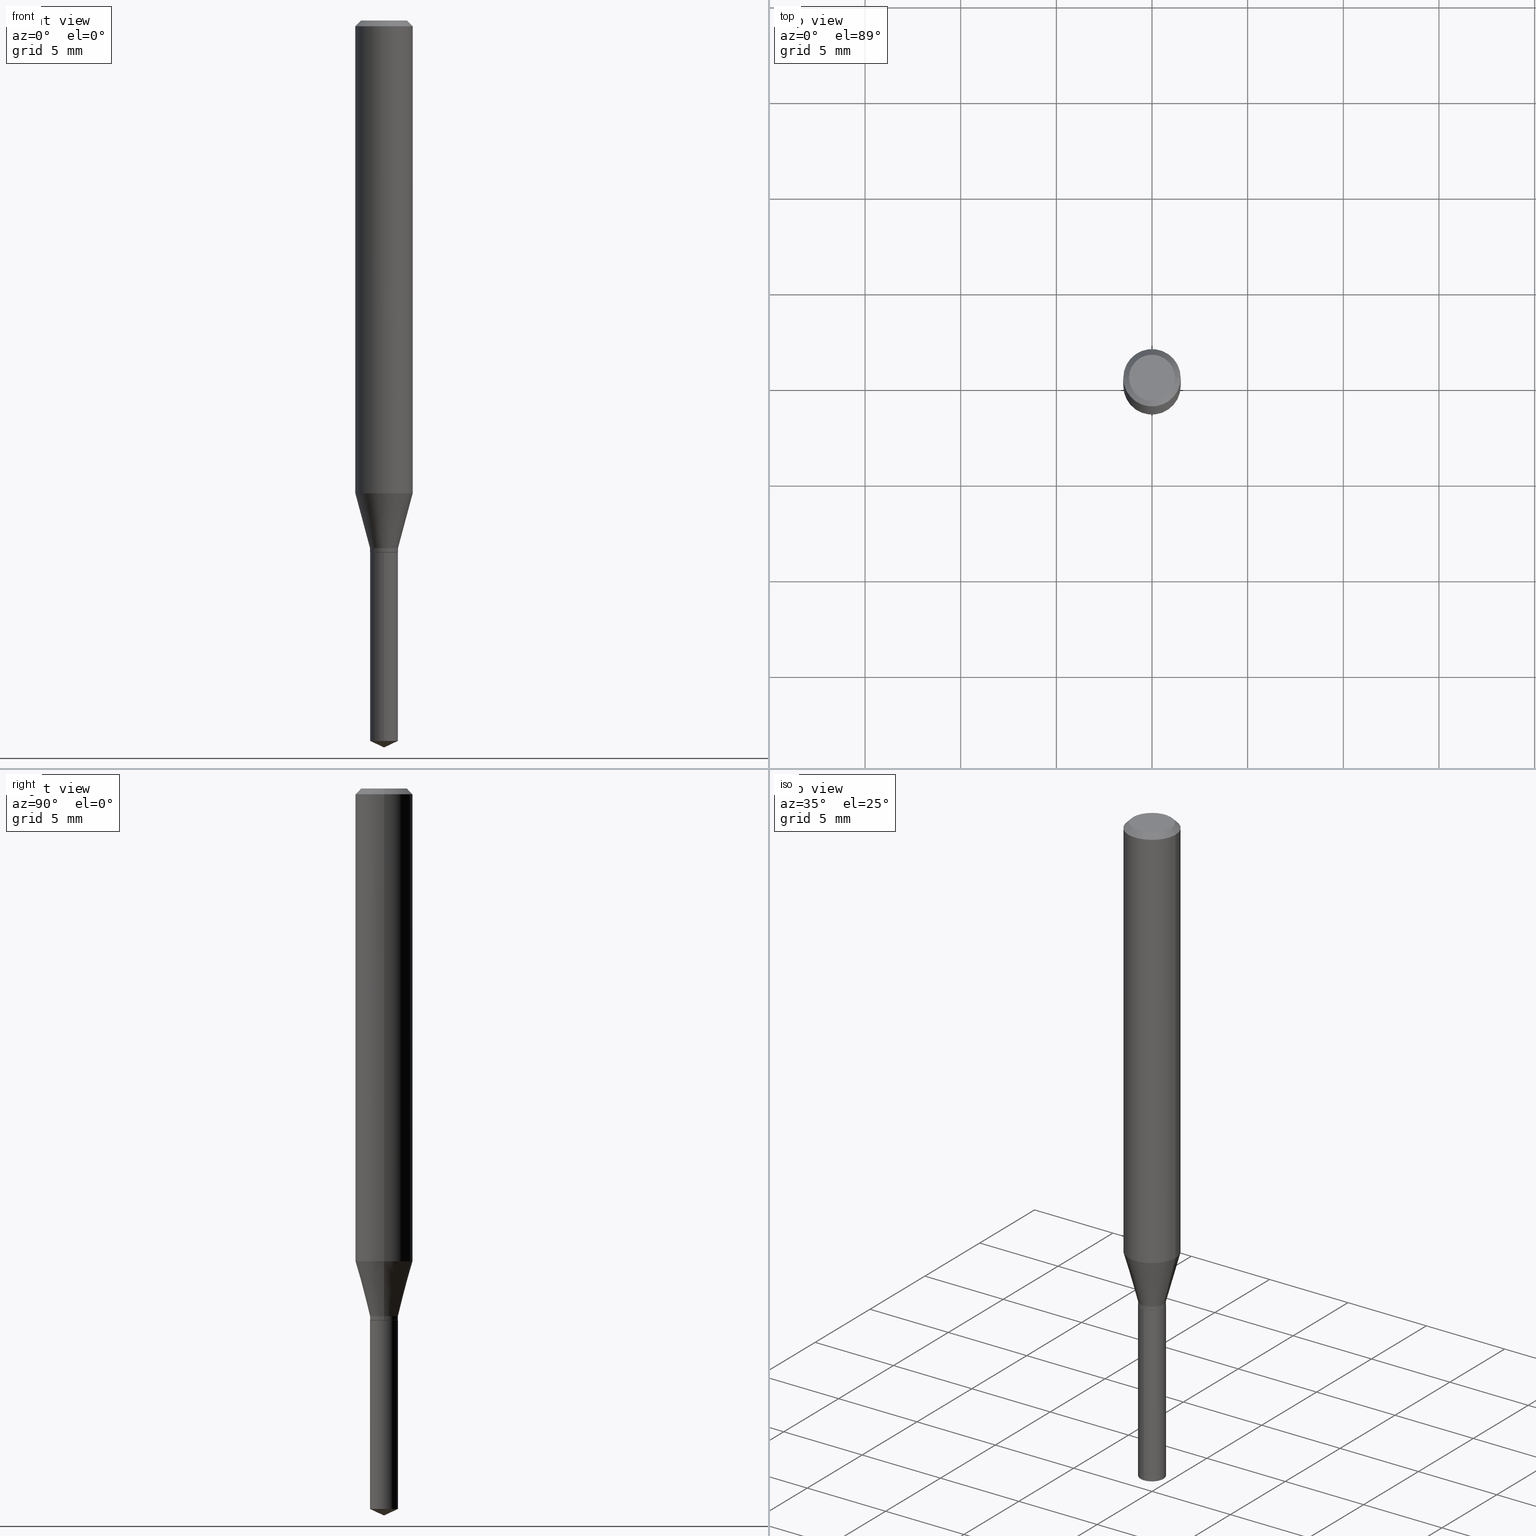
[diagram: canonical four-view strip — front | top / right | iso, engineering-drawing reading convention]
A machine part, canonical four-view strip (front | top / right | iso — engineering-drawing reading convention). The complete STEP part file that produces these views, byte-faithful:
ISO-10303-21;
HEADER;
FILE_DESCRIPTION (( 'STEP AP203' ),
    '1' );
FILE_NAME ('07880.STEP',
    '2024-04-24T05:12:21',
    ( '' ),
    ( '' ),
    'SwSTEP 2.0',
    'SolidWorks 2023',
    '' );
FILE_SCHEMA (( 'CONFIG_CONTROL_DESIGN' ));
ENDSEC;

DATA;
#1 = DIRECTION ( 'NONE',  ( -2.445468806185136597E-29, 3.491481338843145583E-15, 1.000000000000000000 ) ) ;
#2 = ORIENTED_EDGE ( 'NONE', *, *, #81, .T. ) ;
#3 = CARTESIAN_POINT ( 'NONE',  ( -1.018852388048392577E-29, -9.113475226364771968E-15, -1.094500000000000028 ) ) ;
#4 = ORIENTED_EDGE ( 'NONE', *, *, #352, .T. ) ;
#5 = ORIENTED_EDGE ( 'NONE', *, *, #457, .F. ) ;
#6 = AXIS2_PLACEMENT_3D ( 'NONE', #272, #276, #199 ) ;
#7 = ORIENTED_EDGE ( 'NONE', *, *, #175, .F. ) ;
#8 = ORIENTED_EDGE ( 'NONE', *, *, #484, .F. ) ;
#9 = CARTESIAN_POINT ( 'NONE',  ( 2.676565608369632355E-29, -3.821426325363822773E-15, -1.094500000000000028 ) ) ;
#10 = ORIENTED_EDGE ( 'NONE', *, *, #142, .F. ) ;
#11 = CONICAL_SURFACE ( 'NONE', #188, 0.02874999999999998737, 0.2617993877991498519 ) ;
#12 = AXIS2_PLACEMENT_3D ( 'NONE', #398, #436, #483 ) ;
#13 = EDGE_LOOP ( 'NONE', ( #7, #144, #410, #309 ) ) ;
#14 = PRODUCT ( '07880', '07880', '', ( #138 ) ) ;
#15 = ORIENTED_EDGE ( 'NONE', *, *, #134, .T. ) ;
#16 = PLANE ( 'NONE',  #6 ) ;
#17 = CARTESIAN_POINT ( 'NONE',  ( 0.000000000000000000, 0.000000000000000000, 0.000000000000000000 ) ) ;
#18 = AXIS2_PLACEMENT_3D ( 'NONE', #159, #151, #58 ) ;
#19 = VECTOR ( 'NONE', #128, 39.37007874015748854 ) ;
#20 = DIRECTION ( 'NONE',  ( -2.445468806185136597E-29, 3.491481338843145583E-15, 1.000000000000000000 ) ) ;
#21 = CC_DESIGN_APPROVAL ( #329, ( #104 ) ) ;
#22 = ORIENTED_EDGE ( 'NONE', *, *, #129, .F. ) ;
#23 = DATE_AND_TIME ( #63, #489 ) ;
#24 = DIRECTION ( 'NONE',  ( -0.2588190451025211281, 5.211531920934547886E-15, 0.9659258262890679791 ) ) ;
#25 = CALENDAR_DATE ( 2024, 24, 4 ) ;
#26 = CARTESIAN_POINT ( 'NONE',  ( 0.02874999999999998737, -2.007601769834801088E-16, 1.401900823041331120E-30 ) ) ;
#27 = DIRECTION ( 'NONE',  ( -2.445468806185136597E-29, 3.491481338843145583E-15, 1.000000000000000000 ) ) ;
#28 = CLOSED_SHELL ( 'NONE', ( #156, #148, #467, #112, #34, #202, #211, #49, #448, #119, #399, #243 ) ) ;
#29 = CONICAL_SURFACE ( 'NONE', #79, 0.02874999999999998737, 0.2617993877991498519 ) ;
#30 = LENGTH_MEASURE_WITH_UNIT ( LENGTH_MEASURE( 0.02539999999999999897 ), #193 );
#31 = DIRECTION ( 'NONE',  ( -2.445470214571802396E-29, 3.491479321953280158E-15, 1.000000000000000000 ) ) ;
#32 = FACE_OUTER_BOUND ( 'NONE', #257, .T. ) ;
#33 = ORIENTED_EDGE ( 'NONE', *, *, #265, .F. ) ;
#34 = ADVANCED_FACE ( 'NONE', ( #318 ), #123, .T. ) ;
#35 = CARTESIAN_POINT ( 'NONE',  ( -9.261968845786000133E-28, 1.322362114038720264E-13, 37.87397874015748300 ) ) ;
#36 = DATE_AND_TIME ( #217, #271 ) ;
#37 = ORIENTED_EDGE ( 'NONE', *, *, #414, .F. ) ;
#38 = AXIS2_PLACEMENT_3D ( 'NONE', #17, #155, #345 ) ;
#39 = AXIS2_PLACEMENT_3D ( 'NONE', #3, #117, #267 ) ;
#40 = APPROVAL_PERSON_ORGANIZATION ( #478, #55, #206 ) ;
#41 = DIRECTION ( 'NONE',  ( 1.000000000000000000, -6.982962677686266711E-15, 4.876185090822587894E-29 ) ) ;
#42 = EDGE_LOOP ( 'NONE', ( #181, #194, #37, #22 ) ) ;
#43 = PRODUCT_RELATED_PRODUCT_CATEGORY ( 'detail', '', ( #14 ) ) ;
#44 = ORIENTED_EDGE ( 'NONE', *, *, #219, .F. ) ;
#45 = ADVANCED_FACE ( 'NONE', ( #316 ), #196, .T. ) ;
#46 = VERTEX_POINT ( 'NONE', #420 ) ;
#47 = CARTESIAN_POINT ( 'NONE',  ( 2.042810365310650506E-16, 0.02874999999999482136, -1.482693654828043606 ) ) ;
#48 = VERTEX_POINT ( 'NONE', #394 ) ;
#49 = ADVANCED_FACE ( 'NONE', ( #430 ), #94, .T. ) ;
#50 = CARTESIAN_POINT ( 'NONE',  ( 2.655534576636439869E-29, -3.791399585849771334E-15, -1.085899999999999865 ) ) ;
#51 = CARTESIAN_POINT ( 'NONE',  ( 3.625881628737379550E-29, -5.176796444109405893E-15, -1.482693654828043606 ) ) ;
#52 = CC_DESIGN_APPROVAL ( #480, ( #348 ) ) ;
#53 = VERTEX_POINT ( 'NONE', #350 ) ;
#54 = CARTESIAN_POINT ( 'NONE',  ( 0.02874999999999998737, -3.992159762833251344E-15, -1.085899999999999865 ) ) ;
#55 = APPROVAL ( #168, 'UNSPECIFIED' ) ;
#56 = ADVANCED_FACE ( 'NONE', ( #314 ), #231, .T. ) ;
#57 = APPROVAL_DATE_TIME ( #393, #480 ) ;
#58 = DIRECTION ( 'NONE',  ( 1.000000000000000000, -6.982962677686266711E-15, 4.876176775795935793E-29 ) ) ;
#59 = CARTESIAN_POINT ( 'NONE',  ( 2.676565608369631794E-29, -3.821426325363822773E-15, -1.094499999999999806 ) ) ;
#60 = CARTESIAN_POINT ( 'NONE',  ( 0.05905000000000006077, -4.123439461173744764E-16, 2.879382386107503023E-30 ) ) ;
#61 = EDGE_LOOP ( 'NONE', ( #4, #223, #215, #304 ) ) ;
#62 = CIRCLE ( 'NONE', #247, 0.02874999999999998737 ) ;
#63 = CALENDAR_DATE ( 2024, 24, 4 ) ;
#64 = CARTESIAN_POINT ( 'NONE',  ( 2.378998177496304355E-29, -3.396578897617461256E-15, -0.9728188605306625769 ) ) ;
#65 = SECURITY_CLASSIFICATION ( '', '', #363 ) ;
#66 = DIRECTION ( 'NONE',  ( -2.445468806185136597E-29, 3.491481338843145583E-15, 1.000000000000000000 ) ) ;
#67 = EDGE_CURVE ( 'NONE', #53, #106, #261, .T. ) ;
#68 = DIRECTION ( 'NONE',  ( 1.000000000000000000, -6.982962677686259611E-15, 0.000000000000000000 ) ) ;
#69 = LINE ( 'NONE', #132, #222 ) ;
#70 = AXIS2_PLACEMENT_3D ( 'NONE', #51, #311, #89 ) ;
#71 = CC_DESIGN_DATE_AND_TIME_ASSIGNMENT ( #23, #162, ( #65 ) ) ;
#72 = CARTESIAN_POINT ( 'NONE',  ( -0.02874999999999998737, -3.601259048741056725E-15, -1.093999999999999861 ) ) ;
#73 = ORIENTED_EDGE ( 'NONE', *, *, #476, .F. ) ;
#74 = CARTESIAN_POINT ( 'NONE',  ( 2.655534576636439869E-29, -3.791399585849771334E-15, -1.085899999999999865 ) ) ;
#75 = COORDINATED_UNIVERSAL_TIME_OFFSET ( 5, 0, .BEHIND. ) ;
#76 = ORIENTED_EDGE ( 'NONE', *, *, #186, .F. ) ;
#77 = DIRECTION ( 'NONE',  ( -2.445470214571802116E-29, 3.491479321953280158E-15, 1.000000000000000000 ) ) ;
#78 = ORIENTED_EDGE ( 'NONE', *, *, #294, .T. ) ;
#79 = AXIS2_PLACEMENT_3D ( 'NONE', #207, #133, #68 ) ;
#80 = VERTEX_POINT ( 'NONE', #85 ) ;
#81 = EDGE_CURVE ( 'NONE', #114, #46, #468, .T. ) ;
#82 = ORIENTED_EDGE ( 'NONE', *, *, #250, .T. ) ;
#83 = PRODUCT_DEFINITION_SHAPE ( 'NONE', 'NONE',  #104 ) ;
#84 = CALENDAR_DATE ( 2024, 24, 4 ) ;
#85 = CARTESIAN_POINT ( 'NONE',  ( -2.007601769834534108E-16, -0.02875000000000382111, -1.094499999999999806 ) ) ;
#86 = VECTOR ( 'NONE', #102, 39.37007874015748143 ) ;
#87 = CC_DESIGN_APPROVAL ( #55, ( #65 ) ) ;
#88 = VERTEX_POINT ( 'NONE', #90 ) ;
#89 = DIRECTION ( 'NONE',  ( -6.982962677686265922E-15, -1.000000000000000000, 0.000000000000000000 ) ) ;
#90 = CARTESIAN_POINT ( 'NONE',  ( -0.05905000000000011628, -2.977003412151120974E-15, -0.9728188605306625769 ) ) ;
#91 = DIRECTION ( 'NONE',  ( -6.982962677686265922E-15, -1.000000000000000000, 4.751039988981327336E-15 ) ) ;
#92 = DIRECTION ( 'NONE',  ( -6.982962677686265922E-15, -1.000000000000000000, 4.751039988981327336E-15 ) ) ;
#93 = AXIS2_PLACEMENT_3D ( 'NONE', #485, #1, #41 ) ;
#94 = CYLINDRICAL_SURFACE ( 'NONE', #18, 0.05905000000000006077 ) ;
#95 = MANIFOLD_SOLID_BREP ( 'Body-Move/Copy2[1]', #152 ) ;
#96 = DIRECTION ( 'NONE',  ( 1.000000000000000000, -6.982962677686267499E-15, 4.876176775795936353E-29 ) ) ;
#97 = LINE ( 'NONE', #60, #445 ) ;
#98 = EDGE_LOOP ( 'NONE', ( #428, #266, #418 ) ) ;
#99 = CIRCLE ( 'NONE', #70, 0.02875000000000000125 ) ;
#100 = CARTESIAN_POINT ( 'NONE',  ( -0.02874999999999998737, -3.587118549318742152E-15, -1.085899999999999865 ) ) ;
#101 = DATE_AND_TIME ( #25, #332 ) ;
#102 = DIRECTION ( 'NONE',  ( -2.445468806185136877E-29, 3.491481338843145188E-15, 1.000000000000000000 ) ) ;
#103 = FACE_OUTER_BOUND ( 'NONE', #42, .T. ) ;
#104 = PRODUCT_DEFINITION ( 'UNKNOWN', '', #348, #458 ) ;
#105 = CIRCLE ( 'NONE', #253, 0.05904999999999999832 ) ;
#106 = VERTEX_POINT ( 'NONE', #385 ) ;
#107 = CARTESIAN_POINT ( 'NONE',  ( 2.675342873966538993E-29, -3.819680584694400481E-15, -1.093999999999999861 ) ) ;
#108 = VERTEX_POINT ( 'NONE', #125 ) ;
#109 = DIRECTION ( 'NONE',  ( 1.000000000000000000, -6.982962677686259611E-15, 0.000000000000000000 ) ) ;
#110 = ORIENTED_EDGE ( 'NONE', *, *, #236, .F. ) ;
#111 = VERTEX_POINT ( 'NONE', #47 ) ;
#112 = ADVANCED_FACE ( 'NONE', ( #384 ), #11, .T. ) ;
#113 = PERSON_AND_ORGANIZATION ( #380, #153 ) ;
#114 = VERTEX_POINT ( 'NONE', #149 ) ;
#115 = APPROVAL_ROLE ( '' ) ;
#116 = EDGE_LOOP ( 'NONE', ( #246, #15, #147, #33 ) ) ;
#117 = DIRECTION ( 'NONE',  ( -2.438088387897960049E-29, 3.491481338843145188E-15, 1.000000000000000000 ) ) ;
#118 = UNCERTAINTY_MEASURE_WITH_UNIT (LENGTH_MEASURE( 1.000000000000000082E-05 ), #327, 'distance_accuracy_value', 'NONE');
#119 = ADVANCED_FACE ( 'NONE', ( #310 ), #277, .F. ) ;
#120 = CARTESIAN_POINT ( 'NONE',  ( 2.676565608369631794E-29, -3.821426325363822773E-15, -1.094499999999999806 ) ) ;
#121 = AXIS2_PLACEMENT_3D ( 'NONE', #287, #66, #96 ) ;
#122 =( GEOMETRIC_REPRESENTATION_CONTEXT ( 3 ) GLOBAL_UNCERTAINTY_ASSIGNED_CONTEXT ( ( #118 ) ) GLOBAL_UNIT_ASSIGNED_CONTEXT ( ( #327, #173, #442 ) ) REPRESENTATION_CONTEXT ( 'NONE', 'WORKASPACE' ) );
#123 = CYLINDRICAL_SURFACE ( 'NONE', #38, 0.02874999999999998737 ) ;
#124 = CC_DESIGN_PERSON_AND_ORGANIZATION_ASSIGNMENT ( #397, #197, ( #65 ) ) ;
#125 = CARTESIAN_POINT ( 'NONE',  ( 0.02874999999999998737, -3.992159762833251344E-15, -1.085899999999999865 ) ) ;
#126 = ORIENTED_EDGE ( 'NONE', *, *, #142, .T. ) ;
#127 = LINE ( 'NONE', #285, #437 ) ;
#128 = DIRECTION ( 'NONE',  ( -6.328713451373352024E-15, -0.9063077870366461619, 0.4226182617407073239 ) ) ;
#129 = EDGE_CURVE ( 'NONE', #53, #407, #127, .T. ) ;
#130 = CARTESIAN_POINT ( 'NONE',  ( 3.658664905062460986E-29, -5.223606628546217219E-15, -1.496099999999999985 ) ) ;
#131 = VECTOR ( 'NONE', #362, 39.37007874015748854 ) ;
#132 = CARTESIAN_POINT ( 'NONE',  ( 2.042810365310555350E-16, 0.02874999999999618139, -1.094500000000000028 ) ) ;
#133 = DIRECTION ( 'NONE',  ( -2.445468806185136597E-29, 3.491481338843145583E-15, 1.000000000000000000 ) ) ;
#134 = EDGE_CURVE ( 'NONE', #88, #177, #291, .T. ) ;
#135 = DIRECTION ( 'NONE',  ( -2.445468806185136597E-29, 3.491481338843145583E-15, 1.000000000000000000 ) ) ;
#136 = AXIS2_PLACEMENT_3D ( 'NONE', #198, #275, #353 ) ;
#137 = FACE_OUTER_BOUND ( 'NONE', #377, .T. ) ;
#138 = MECHANICAL_CONTEXT ( 'NONE', #273, 'mechanical' ) ;
#139 = ORIENTED_EDGE ( 'NONE', *, *, #476, .T. ) ;
#140 = DIRECTION ( 'NONE',  ( -2.445468806185136597E-29, 3.491481338843145583E-15, 1.000000000000000000 ) ) ;
#141 = ORIENTED_EDGE ( 'NONE', *, *, #255, .T. ) ;
#142 = EDGE_CURVE ( 'NONE', #407, #108, #244, .T. ) ;
#143 = CARTESIAN_POINT ( 'NONE',  ( 2.888098660104664642E-31, -4.123439461173780879E-17, -0.01181000000000007565 ) ) ;
#144 = ORIENTED_EDGE ( 'NONE', *, *, #219, .T. ) ;
#145 = VERTEX_POINT ( 'NONE', #169 ) ;
#146 = CIRCLE ( 'NONE', #306, 0.02875000000000000125 ) ;
#147 = ORIENTED_EDGE ( 'NONE', *, *, #225, .T. ) ;
#148 = ADVANCED_FACE ( 'NONE', ( #367 ), #453, .T. ) ;
#149 = CARTESIAN_POINT ( 'NONE',  ( 0.04724000000000000421, -3.852183633974369345E-16, -3.380025165621689721E-19 ) ) ;
#150 = DIRECTION ( 'NONE',  ( 0.2588190451025211281, 1.565188264969622954E-15, 0.9659258262890679791 ) ) ;
#151 = DIRECTION ( 'NONE',  ( -2.445468806185136597E-29, 3.491481338843145583E-15, 1.000000000000000000 ) ) ;
#152 = CLOSED_SHELL ( 'NONE', ( #56, #361, #299, #45, #443 ) ) ;
#153 = ORGANIZATION ( 'UNSPECIFIED', 'UNSPECIFIED', '' ) ;
#154 = APPROVAL_STATUS ( 'not_yet_approved' ) ;
#155 = DIRECTION ( 'NONE',  ( -2.445468806185136597E-29, 3.491481338843145583E-15, 1.000000000000000000 ) ) ;
#156 = ADVANCED_FACE ( 'NONE', ( #103 ), #388, .T. ) ;
#157 = ORIENTED_EDGE ( 'NONE', *, *, #312, .F. ) ;
#158 = CARTESIAN_POINT ( 'NONE',  ( 2.888098660104664642E-31, -4.123439461173780879E-17, -0.01181000000000007565 ) ) ;
#159 = CARTESIAN_POINT ( 'NONE',  ( 0.000000000000000000, 0.000000000000000000, 0.000000000000000000 ) ) ;
#160 = FACE_OUTER_BOUND ( 'NONE', #61, .T. ) ;
#161 = CIRCLE ( 'NONE', #262, 0.02875000000000000125 ) ;
#162 = DATE_TIME_ROLE ( 'classification_date' ) ;
#163 = CYLINDRICAL_SURFACE ( 'NONE', #121, 0.02874999999999998737 ) ;
#164 = ORIENTED_EDGE ( 'NONE', *, *, #344, .T. ) ;
#165 = APPROVAL_DATE_TIME ( #101, #55 ) ;
#166 = LINE ( 'NONE', #130, #19 ) ;
#167 = ORIENTED_EDGE ( 'NONE', *, *, #414, .T. ) ;
#168 = APPROVAL_STATUS ( 'not_yet_approved' ) ;
#169 = CARTESIAN_POINT ( 'NONE',  ( -0.04724000000000000421, 3.504923541997677355E-16, -3.380025165670481712E-19 ) ) ;
#170 = CONICAL_SURFACE ( 'NONE', #365, 0.02825000000000000080, 0.7853981633972647591 ) ;
#171 = COORDINATED_UNIVERSAL_TIME_OFFSET ( 5, 0, .BEHIND. ) ;
#172 = DIRECTION ( 'NONE',  ( -2.445468806185136877E-29, 3.491481338843145188E-15, 1.000000000000000000 ) ) ;
#173 =( NAMED_UNIT ( * ) PLANE_ANGLE_UNIT ( ) SI_UNIT ( $, .RADIAN. ) );
#174 = LINE ( 'NONE', #100, #378 ) ;
#175 = EDGE_CURVE ( 'NONE', #48, #88, #174, .T. ) ;
#176 = DIRECTION ( 'NONE',  ( -2.445470214571802116E-29, 3.491479321953280158E-15, 1.000000000000000000 ) ) ;
#177 = VERTEX_POINT ( 'NONE', #355 ) ;
#178 = LINE ( 'NONE', #221, #204 ) ;
#179 = CIRCLE ( 'NONE', #315, 0.02874999999999998737 ) ;
#180 = LOCAL_TIME ( 1, 12, 21.00000000000000000, #429 ) ;
#181 = ORIENTED_EDGE ( 'NONE', *, *, #67, .T. ) ;
#182 = CC_DESIGN_PERSON_AND_ORGANIZATION_ASSIGNMENT ( #455, #369, ( #14 ) ) ;
#183 = DIRECTION ( 'NONE',  ( -6.982962677686265922E-15, -1.000000000000000000, 4.751039988981327336E-15 ) ) ;
#184 = EDGE_LOOP ( 'NONE', ( #167, #141, #157, #10 ) ) ;
#185 = EDGE_LOOP ( 'NONE', ( #110, #456, #337, #187 ) ) ;
#186 = EDGE_CURVE ( 'NONE', #145, #447, #213, .T. ) ;
#187 = ORIENTED_EDGE ( 'NONE', *, *, #419, .F. ) ;
#188 = AXIS2_PLACEMENT_3D ( 'NONE', #50, #191, #342 ) ;
#189 = CIRCLE ( 'NONE', #12, 0.04724000000000000421 ) ;
#190 = PERSON_AND_ORGANIZATION ( #380, #153 ) ;
#191 = DIRECTION ( 'NONE',  ( -2.445468806185136597E-29, 3.491481338843145583E-15, 1.000000000000000000 ) ) ;
#192 = ORIENTED_EDGE ( 'NONE', *, *, #344, .F. ) ;
#193 =( LENGTH_UNIT ( ) NAMED_UNIT ( * ) SI_UNIT ( $, .METRE. ) );
#194 = ORIENTED_EDGE ( 'NONE', *, *, #392, .T. ) ;
#195 = CONICAL_SURFACE ( 'NONE', #379, 84.42940631927278616, 1.134464013796308901 ) ;
#196 = CYLINDRICAL_SURFACE ( 'NONE', #136, 0.02875000000000000125 ) ;
#197 = PERSON_AND_ORGANIZATION_ROLE ( 'classification_officer' ) ;
#198 = CARTESIAN_POINT ( 'NONE',  ( 2.676565608369631794E-29, -3.821426325363822773E-15, -1.094499999999999806 ) ) ;
#199 = DIRECTION ( 'NONE',  ( 6.982962677686265922E-15, 1.000000000000000000, -3.491479321953280158E-15 ) ) ;
#200 = CC_DESIGN_DATE_AND_TIME_ASSIGNMENT ( #233, #241, ( #104 ) ) ;
#201 = DIRECTION ( 'NONE',  ( -2.445468806185136877E-29, 3.491481338843145188E-15, 1.000000000000000000 ) ) ;
#202 = ADVANCED_FACE ( 'NONE', ( #481 ), #163, .T. ) ;
#203 = VERTEX_POINT ( 'NONE', #296 ) ;
#204 = VECTOR ( 'NONE', #254, 39.37007874015748143 ) ;
#205 = FACE_OUTER_BOUND ( 'NONE', #374, .T. ) ;
#206 = APPROVAL_ROLE ( '' ) ;
#207 = CARTESIAN_POINT ( 'NONE',  ( 2.655534576636439869E-29, -3.791399585849771334E-15, -1.085899999999999865 ) ) ;
#208 = CC_DESIGN_PERSON_AND_ORGANIZATION_ASSIGNMENT ( #465, #278, ( #104 ) ) ;
#209 = COORDINATED_UNIVERSAL_TIME_OFFSET ( 5, 0, .BEHIND. ) ;
#210 = DIRECTION ( 'NONE',  ( 1.000000000000000000, -6.982962677686259611E-15, 0.000000000000000000 ) ) ;
#211 = ADVANCED_FACE ( 'NONE', ( #435 ), #29, .T. ) ;
#212 = CIRCLE ( 'NONE', #472, 0.02875000000000000125 ) ;
#213 = LINE ( 'NONE', #245, #421 ) ;
#214 = DIRECTION ( 'NONE',  ( -2.445470214571802116E-29, 3.491479321953280158E-15, 1.000000000000000000 ) ) ;
#215 = ORIENTED_EDGE ( 'NONE', *, *, #294, .F. ) ;
#216 = DIRECTION ( 'NONE',  ( -6.982962677686265922E-15, -1.000000000000000000, 0.000000000000000000 ) ) ;
#217 = CALENDAR_DATE ( 2024, 24, 4 ) ;
#218 = ORIENTED_EDGE ( 'NONE', *, *, #381, .T. ) ;
#219 = EDGE_CURVE ( 'NONE', #48, #108, #270, .T. ) ;
#220 = ADVANCED_BREP_SHAPE_REPRESENTATION ( '07880', ( #95, #425, #321 ), #122 ) ;
#221 = CARTESIAN_POINT ( 'NONE',  ( -0.05905000000000006077, 4.195754854663395916E-16, -2.904631170795524694E-30 ) ) ;
#222 = VECTOR ( 'NONE', #31, 39.37007874015748143 ) ;
#223 = ORIENTED_EDGE ( 'NONE', *, *, #375, .T. ) ;
#224 = ORIENTED_EDGE ( 'NONE', *, *, #284, .F. ) ;
#225 = EDGE_CURVE ( 'NONE', #177, #46, #97, .T. ) ;
#226 = APPROVAL_STATUS ( 'not_yet_approved' ) ;
#227 = ORIENTED_EDGE ( 'NONE', *, *, #186, .T. ) ;
#228 = CARTESIAN_POINT ( 'NONE',  ( 0.05904999999999999832, -4.463468013801466955E-16, -0.01181000000000007565 ) ) ;
#229 = CONICAL_SURFACE ( 'NONE', #454, 0.05904999999999999832, 0.7853981633974450594 ) ;
#230 = CARTESIAN_POINT ( 'NONE',  ( 0.02874999999999998737, -4.020440761677880491E-15, -1.093999999999999861 ) ) ;
#231 = CYLINDRICAL_SURFACE ( 'NONE', #313, 0.02875000000000000125 ) ;
#232 = DIRECTION ( 'NONE',  ( 1.000000000000000000, -6.982962677686272233E-15, 0.000000000000000000 ) ) ;
#233 = DATE_AND_TIME ( #84, #180 ) ;
#234 = VERTEX_POINT ( 'NONE', #251 ) ;
#235 = DIRECTION ( 'NONE',  ( -2.445468806185136597E-29, 3.491481338843145583E-15, 1.000000000000000000 ) ) ;
#236 = EDGE_CURVE ( 'NONE', #111, #234, #69, .T. ) ;
#237 = CARTESIAN_POINT ( 'NONE',  ( 4.132873053354867254E-48, -5.900647395337818946E-34, -1.690012582823346072E-19 ) ) ;
#238 = AXIS2_PLACEMENT_3D ( 'NONE', #403, #249, #441 ) ;
#239 = FACE_OUTER_BOUND ( 'NONE', #372, .T. ) ;
#240 = VECTOR ( 'NONE', #486, 39.37007874015748854 ) ;
#241 = DATE_TIME_ROLE ( 'creation_date' ) ;
#242 = DIRECTION ( 'NONE',  ( -2.445468806185136597E-29, 3.491481338843145583E-15, 1.000000000000000000 ) ) ;
#243 = ADVANCED_FACE ( 'NONE', ( #205 ), #170, .T. ) ;
#244 = LINE ( 'NONE', #26, #86 ) ;
#245 = CARTESIAN_POINT ( 'NONE',  ( -0.05904999999999999832, 3.711095515056362547E-16, -0.01181000000000007565 ) ) ;
#246 = ORIENTED_EDGE ( 'NONE', *, *, #375, .F. ) ;
#247 = AXIS2_PLACEMENT_3D ( 'NONE', #395, #282, #349 ) ;
#248 = CARTESIAN_POINT ( 'NONE',  ( 3.658668015054778287E-29, -5.223602213574301462E-15, -1.496099999999999985 ) ) ;
#249 = DIRECTION ( 'NONE',  ( 2.445468806185136597E-29, -3.491481338843145583E-15, -1.000000000000000000 ) ) ;
#250 = EDGE_CURVE ( 'NONE', #203, #307, #166, .T. ) ;
#251 = CARTESIAN_POINT ( 'NONE',  ( 2.042810365310651246E-16, 0.02874999999999618139, -1.094500000000000028 ) ) ;
#252 = CONICAL_SURFACE ( 'NONE', #475, 84.42940631927278616, 1.134464013796308901 ) ;
#253 = AXIS2_PLACEMENT_3D ( 'NONE', #293, #404, #322 ) ;
#254 = DIRECTION ( 'NONE',  ( -2.445468806185136877E-29, 3.491481338843145188E-15, 1.000000000000000000 ) ) ;
#255 = EDGE_CURVE ( 'NONE', #305, #48, #479, .T. ) ;
#256 = DIRECTION ( 'NONE',  ( 1.000000000000000000, -6.982962677686259611E-15, 0.000000000000000000 ) ) ;
#257 = EDGE_LOOP ( 'NONE', ( #224, #82, #452 ) ) ;
#258 = CARTESIAN_POINT ( 'NONE',  ( 2.676565608369631794E-29, -3.821426325363822773E-15, -1.094499999999999806 ) ) ;
#259 = DIRECTION ( 'NONE',  ( 0.000000000000000000, 0.000000000000000000, 1.000000000000000000 ) ) ;
#260 = ORIENTED_EDGE ( 'NONE', *, *, #419, .T. ) ;
#261 = CIRCLE ( 'NONE', #405, 0.02825000000000000080 ) ;
#262 = AXIS2_PLACEMENT_3D ( 'NONE', #258, #214, #183 ) ;
#263 = ORIENTED_EDGE ( 'NONE', *, *, #352, .F. ) ;
#264 = ORIENTED_EDGE ( 'NONE', *, *, #274, .T. ) ;
#265 = EDGE_CURVE ( 'NONE', #447, #46, #105, .T. ) ;
#266 = ORIENTED_EDGE ( 'NONE', *, *, #284, .T. ) ;
#267 = DIRECTION ( 'NONE',  ( 1.000000000000000000, -6.982962677686265922E-15, 4.876176775795935793E-29 ) ) ;
#268 = AXIS2_PLACEMENT_3D ( 'NONE', #64, #439, #324 ) ;
#269 = DIRECTION ( 'NONE',  ( -1.000000000000000000, 6.982962677686265922E-15, -4.876176775795935793E-29 ) ) ;
#270 = CIRCLE ( 'NONE', #415, 0.02874999999999998737 ) ;
#271 = LOCAL_TIME ( 1, 12, 21.00000000000000000, #75 ) ;
#272 = CARTESIAN_POINT ( 'NONE',  ( 2.676565608369631794E-29, -3.821426325363822773E-15, -1.094499999999999806 ) ) ;
#273 = APPLICATION_CONTEXT ( 'configuration controlled 3d designs of mechanical parts and assemblies' ) ;
#274 = EDGE_CURVE ( 'NONE', #145, #114, #189, .T. ) ;
#275 = DIRECTION ( 'NONE',  ( -2.445470214571802116E-29, 3.491479321953280158E-15, 1.000000000000000000 ) ) ;
#276 = DIRECTION ( 'NONE',  ( 2.445470214571801836E-29, -3.491479321953280158E-15, -1.000000000000000000 ) ) ;
#277 = PLANE ( 'NONE',  #471 ) ;
#278 = PERSON_AND_ORGANIZATION_ROLE ( 'creator' ) ;
#279 = ORIENTED_EDGE ( 'NONE', *, *, #312, .T. ) ;
#280 = CC_DESIGN_PERSON_AND_ORGANIZATION_ASSIGNMENT ( #440, #295, ( #348 ) ) ;
#281 = VECTOR ( 'NONE', #426, 39.37007874015748143 ) ;
#282 = DIRECTION ( 'NONE',  ( -2.445468806185136597E-29, 3.491481338843145583E-15, 1.000000000000000000 ) ) ;
#283 = VECTOR ( 'NONE', #383, 39.37007874015748143 ) ;
#284 = EDGE_CURVE ( 'NONE', #203, #111, #326, .T. ) ;
#285 = CARTESIAN_POINT ( 'NONE',  ( 0.02825000000000000080, -4.018695021008460565E-15, -1.094500000000000028 ) ) ;
#286 = PERSON_AND_ORGANIZATION ( #380, #153 ) ;
#287 = CARTESIAN_POINT ( 'NONE',  ( 0.000000000000000000, 0.000000000000000000, 0.000000000000000000 ) ) ;
#288 = APPLICATION_PROTOCOL_DEFINITION ( 'international standard', 'config_control_design', 1994, #273 ) ;
#289 = ORIENTED_EDGE ( 'NONE', *, *, #129, .T. ) ;
#290 = CARTESIAN_POINT ( 'NONE',  ( -0.02874999999999998737, 2.042810365310287137E-16, -1.414193838448284831E-30 ) ) ;
#291 = CIRCLE ( 'NONE', #268, 0.05905000000000011628 ) ;
#292 = AXIS2_PLACEMENT_3D ( 'NONE', #432, #235, #424 ) ;
#293 = CARTESIAN_POINT ( 'NONE',  ( 2.888098660104664642E-31, -4.123439461173780879E-17, -0.01181000000000007565 ) ) ;
#294 = EDGE_CURVE ( 'NONE', #46, #447, #422, .T. ) ;
#295 = PERSON_AND_ORGANIZATION_ROLE ( 'design_supplier' ) ;
#296 = CARTESIAN_POINT ( 'NONE',  ( 3.658667988020872822E-29, -5.223602213574301462E-15, -1.496099999999999985 ) ) ;
#297 = CARTESIAN_POINT ( 'NONE',  ( 2.378998177496304355E-29, -3.396578897617461256E-15, -0.9728188605306625769 ) ) ;
#298 = APPROVAL_ROLE ( '' ) ;
#299 = ADVANCED_FACE ( 'NONE', ( #32 ), #195, .T. ) ;
#300 = APPROVAL_PERSON_ORGANIZATION ( #190, #480, #115 ) ;
#301 = PLANE ( 'NONE',  #39 ) ;
#302 = EDGE_LOOP ( 'NONE', ( #389, #346, #227, #338 ) ) ;
#303 = DIRECTION ( 'NONE',  ( -6.982962677686268288E-15, -1.000000000000000000, 3.520397390770518557E-15 ) ) ;
#304 = ORIENTED_EDGE ( 'NONE', *, *, #225, .F. ) ;
#305 = VERTEX_POINT ( 'NONE', #72 ) ;
#306 = AXIS2_PLACEMENT_3D ( 'NONE', #59, #351, #92 ) ;
#307 = VERTEX_POINT ( 'NONE', #446 ) ;
#308 = EDGE_CURVE ( 'NONE', #114, #145, #347, .T. ) ;
#309 = ORIENTED_EDGE ( 'NONE', *, *, #134, .F. ) ;
#310 = FACE_OUTER_BOUND ( 'NONE', #450, .T. ) ;
#311 = DIRECTION ( 'NONE',  ( -2.445470214571802116E-29, 3.491479321953280158E-15, 1.000000000000000000 ) ) ;
#312 = EDGE_CURVE ( 'NONE', #108, #48, #179, .T. ) ;
#313 = AXIS2_PLACEMENT_3D ( 'NONE', #120, #423, #91 ) ;
#314 = FACE_OUTER_BOUND ( 'NONE', #417, .T. ) ;
#315 = AXIS2_PLACEMENT_3D ( 'NONE', #74, #412, #109 ) ;
#316 = FACE_OUTER_BOUND ( 'NONE', #185, .T. ) ;
#317 = CARTESIAN_POINT ( 'NONE',  ( -2.007601769834534108E-16, -0.02875000000000382111, -1.094499999999999806 ) ) ;
#318 = FACE_OUTER_BOUND ( 'NONE', #184, .T. ) ;
#319 = ORIENTED_EDGE ( 'NONE', *, *, #392, .F. ) ;
#320 = AXIS2_PLACEMENT_3D ( 'NONE', #360, #323, #434 ) ;
#321 = AXIS2_PLACEMENT_3D ( 'NONE', #401, #259, #416 ) ;
#322 = DIRECTION ( 'NONE',  ( 1.000000000000000000, -6.982962677686266711E-15, 0.000000000000000000 ) ) ;
#323 = DIRECTION ( 'NONE',  ( -2.445468806185136597E-29, 3.491481338843145583E-15, 1.000000000000000000 ) ) ;
#324 = DIRECTION ( 'NONE',  ( 1.000000000000000000, -6.982962677686266711E-15, 0.000000000000000000 ) ) ;
#325 = AXIS2_PLACEMENT_3D ( 'NONE', #9, #469, #232 ) ;
#326 = LINE ( 'NONE', #248, #131 ) ;
#327 =( CONVERSION_BASED_UNIT ( 'INCH', #30 ) LENGTH_UNIT ( ) NAMED_UNIT ( #411 ) );
#328 = DIRECTION ( 'NONE',  ( -0.7071067811865452413, 2.468850131082233000E-15, -0.7071067811865497932 ) ) ;
#329 = APPROVAL ( #226, 'UNSPECIFIED' ) ;
#330 = LINE ( 'NONE', #336, #240 ) ;
#331 = EDGE_LOOP ( 'NONE', ( #487, #164, #126, #44 ) ) ;
#332 = LOCAL_TIME ( 1, 12, 21.00000000000000000, #209 ) ;
#333 = DIRECTION ( 'NONE',  ( -2.445470214571802116E-29, 3.491479321953280158E-15, 1.000000000000000000 ) ) ;
#334 = APPROVAL_DATE_TIME ( #36, #329 ) ;
#335 = EDGE_LOOP ( 'NONE', ( #279, #413, #263, #8 ) ) ;
#336 = CARTESIAN_POINT ( 'NONE',  ( -0.02825000000000000080, -3.620698002511594490E-15, -1.094500000000000028 ) ) ;
#337 = ORIENTED_EDGE ( 'NONE', *, *, #457, .T. ) ;
#338 = ORIENTED_EDGE ( 'NONE', *, *, #265, .T. ) ;
#339 = CIRCLE ( 'NONE', #390, 0.05905000000000011628 ) ;
#340 = COORDINATED_UNIVERSAL_TIME_OFFSET ( 5, 0, .BEHIND. ) ;
#341 = EDGE_LOOP ( 'NONE', ( #466, #2, #78, #76 ) ) ;
#342 = DIRECTION ( 'NONE',  ( 1.000000000000000000, -6.982962677686259611E-15, 0.000000000000000000 ) ) ;
#343 = CYLINDRICAL_SURFACE ( 'NONE', #292, 0.05905000000000006077 ) ;
#344 = EDGE_CURVE ( 'NONE', #305, #407, #400, .T. ) ;
#345 = DIRECTION ( 'NONE',  ( 1.000000000000000000, -6.982962677686267499E-15, 4.876176775795936353E-29 ) ) ;
#346 = ORIENTED_EDGE ( 'NONE', *, *, #274, .F. ) ;
#347 = CIRCLE ( 'NONE', #93, 0.04724000000000000421 ) ;
#348 = PRODUCT_DEFINITION_FORMATION_WITH_SPECIFIED_SOURCE ( 'ANY', '', #14, .NOT_KNOWN. ) ;
#349 = DIRECTION ( 'NONE',  ( 1.000000000000000000, -6.982962677686259611E-15, 0.000000000000000000 ) ) ;
#350 = CARTESIAN_POINT ( 'NONE',  ( 0.02825000000000000080, -4.018695021008460565E-15, -1.094500000000000028 ) ) ;
#351 = DIRECTION ( 'NONE',  ( -2.445470214571802116E-29, 3.491479321953280158E-15, 1.000000000000000000 ) ) ;
#352 = EDGE_CURVE ( 'NONE', #177, #88, #339, .T. ) ;
#353 = DIRECTION ( 'NONE',  ( -6.982962677686265922E-15, -1.000000000000000000, 4.751039988981327336E-15 ) ) ;
#354 = LINE ( 'NONE', #317, #283 ) ;
#355 = CARTESIAN_POINT ( 'NONE',  ( 0.05905000000000011628, -3.808922843734835781E-15, -0.9728188605306625769 ) ) ;
#356 = VECTOR ( 'NONE', #172, 39.37007874015748143 ) ;
#357 = ORIENTED_EDGE ( 'NONE', *, *, #308, .T. ) ;
#358 = CC_DESIGN_SECURITY_CLASSIFICATION ( #65, ( #348 ) ) ;
#359 = SHAPE_DEFINITION_REPRESENTATION ( #83, #220 ) ;
#360 = CARTESIAN_POINT ( 'NONE',  ( 2.676565608369632355E-29, -3.821426325363822773E-15, -1.094500000000000028 ) ) ;
#361 = ADVANCED_FACE ( 'NONE', ( #373 ), #252, .T. ) ;
#362 = DIRECTION ( 'NONE',  ( 6.439704144417007476E-15, 0.9063077870366490485, 0.4226182617407009956 ) ) ;
#363 = SECURITY_CLASSIFICATION_LEVEL ( 'unclassified' ) ;
#364 = DIRECTION ( 'NONE',  ( 0.7071067811864176766, -2.468850131080897064E-15, 0.7071067811866772468 ) ) ;
#365 = AXIS2_PLACEMENT_3D ( 'NONE', #477, #20, #402 ) ;
#366 = EDGE_CURVE ( 'NONE', #307, #111, #212, .T. ) ;
#367 = FACE_OUTER_BOUND ( 'NONE', #341, .T. ) ;
#368 = DIRECTION ( 'NONE',  ( -6.982962677686268288E-15, -1.000000000000000000, 3.520397390770518557E-15 ) ) ;
#369 = PERSON_AND_ORGANIZATION_ROLE ( 'design_owner' ) ;
#370 = ORIENTED_EDGE ( 'NONE', *, *, #381, .F. ) ;
#371 = CARTESIAN_POINT ( 'NONE',  ( -9.261968845786000133E-28, 1.322362114038720264E-13, 37.87397874015748300 ) ) ;
#372 = EDGE_LOOP ( 'NONE', ( #218, #260 ) ) ;
#373 = FACE_OUTER_BOUND ( 'NONE', #98, .T. ) ;
#374 = EDGE_LOOP ( 'NONE', ( #319, #139, #289, #192 ) ) ;
#375 = EDGE_CURVE ( 'NONE', #88, #447, #178, .T. ) ;
#376 = ORIENTED_EDGE ( 'NONE', *, *, #67, .F. ) ;
#377 = EDGE_LOOP ( 'NONE', ( #376, #73 ) ) ;
#378 = VECTOR ( 'NONE', #24, 39.37007874015748854 ) ;
#379 = AXIS2_PLACEMENT_3D ( 'NONE', #35, #333, #303 ) ;
#380 = PERSON ( 'UNSPECIFIED', 'UNSPECIFIED', 'UNSPECIFIED', ('UNSPECIFIED'), ('UNSPECIFIED'), ('UNSPECIFIED') ) ;
#381 = EDGE_CURVE ( 'NONE', #80, #234, #161, .T. ) ;
#382 = CARTESIAN_POINT ( 'NONE',  ( 2.676565608369632355E-29, -3.821426325363822773E-15, -1.094500000000000028 ) ) ;
#383 = DIRECTION ( 'NONE',  ( -2.445470214571802396E-29, 3.491479321953280158E-15, 1.000000000000000000 ) ) ;
#384 = FACE_OUTER_BOUND ( 'NONE', #335, .T. ) ;
#385 = CARTESIAN_POINT ( 'NONE',  ( -0.02825000000000000080, -3.618048775337483289E-15, -1.094500000000000028 ) ) ;
#386 = CC_DESIGN_PERSON_AND_ORGANIZATION_ASSIGNMENT ( #286, #433, ( #348 ) ) ;
#387 = LINE ( 'NONE', #54, #488 ) ;
#388 = CONICAL_SURFACE ( 'NONE', #320, 0.02825000000000000080, 0.7853981633972647591 ) ;
#389 = ORIENTED_EDGE ( 'NONE', *, *, #81, .F. ) ;
#390 = AXIS2_PLACEMENT_3D ( 'NONE', #297, #406, #408 ) ;
#391 = DIRECTION ( 'NONE',  ( 2.445468806185136597E-29, -3.491481338843145583E-15, -1.000000000000000000 ) ) ;
#392 = EDGE_CURVE ( 'NONE', #106, #305, #330, .T. ) ;
#393 = DATE_AND_TIME ( #473, #464 ) ;
#394 = CARTESIAN_POINT ( 'NONE',  ( -0.02874999999999998737, -3.601259048741056725E-15, -1.085899999999999865 ) ) ;
#395 = CARTESIAN_POINT ( 'NONE',  ( 2.675342873966538993E-29, -3.819680584694400481E-15, -1.093999999999999861 ) ) ;
#396 = CARTESIAN_POINT ( 'NONE',  ( 2.655534576636439869E-29, -3.791399585849771334E-15, -1.085899999999999865 ) ) ;
#397 = PERSON_AND_ORGANIZATION ( #380, #153 ) ;
#398 = CARTESIAN_POINT ( 'NONE',  ( 8.265746106709734507E-48, -1.180129479067563789E-33, -3.380025165646692144E-19 ) ) ;
#399 = ADVANCED_FACE ( 'NONE', ( #137 ), #301, .F. ) ;
#400 = CIRCLE ( 'NONE', #482, 0.02874999999999998737 ) ;
#401 = CARTESIAN_POINT ( 'NONE',  ( 0.000000000000000000, 0.000000000000000000, 0.000000000000000000 ) ) ;
#402 = DIRECTION ( 'NONE',  ( 1.000000000000000000, -6.982962677686272233E-15, 0.000000000000000000 ) ) ;
#403 = CARTESIAN_POINT ( 'NONE',  ( 2.888098660104664642E-31, -4.123439461173780879E-17, -0.01181000000000007565 ) ) ;
#404 = DIRECTION ( 'NONE',  ( -2.445468806185136597E-29, 3.491481338843145583E-15, 1.000000000000000000 ) ) ;
#405 = AXIS2_PLACEMENT_3D ( 'NONE', #382, #242, #474 ) ;
#406 = DIRECTION ( 'NONE',  ( -2.445468806185136597E-29, 3.491481338843145583E-15, 1.000000000000000000 ) ) ;
#407 = VERTEX_POINT ( 'NONE', #230 ) ;
#408 = DIRECTION ( 'NONE',  ( 1.000000000000000000, -6.982962677686266711E-15, 0.000000000000000000 ) ) ;
#409 = APPLICATION_PROTOCOL_DEFINITION ( 'international standard', 'config_control_design', 1994, #451 ) ;
#410 = ORIENTED_EDGE ( 'NONE', *, *, #484, .T. ) ;
#411 = DIMENSIONAL_EXPONENTS ( 1.000000000000000000, 0.000000000000000000, 0.000000000000000000, 0.000000000000000000, 0.000000000000000000, 0.000000000000000000, 0.000000000000000000 ) ;
#412 = DIRECTION ( 'NONE',  ( -2.445468806185136597E-29, 3.491481338843145583E-15, 1.000000000000000000 ) ) ;
#413 = ORIENTED_EDGE ( 'NONE', *, *, #175, .T. ) ;
#414 = EDGE_CURVE ( 'NONE', #407, #305, #62, .T. ) ;
#415 = AXIS2_PLACEMENT_3D ( 'NONE', #396, #27, #210 ) ;
#416 = DIRECTION ( 'NONE',  ( 1.000000000000000000, 0.000000000000000000, 0.000000000000000000 ) ) ;
#417 = EDGE_LOOP ( 'NONE', ( #470, #459, #370, #5 ) ) ;
#418 = ORIENTED_EDGE ( 'NONE', *, *, #366, .F. ) ;
#419 = EDGE_CURVE ( 'NONE', #234, #80, #146, .T. ) ;
#420 = CARTESIAN_POINT ( 'NONE',  ( 0.05904999999999999832, -4.535783407291118600E-16, -0.01181000000000007565 ) ) ;
#421 = VECTOR ( 'NONE', #328, 39.37007874015748143 ) ;
#422 = CIRCLE ( 'NONE', #431, 0.05904999999999999832 ) ;
#423 = DIRECTION ( 'NONE',  ( -2.445470214571802116E-29, 3.491479321953280158E-15, 1.000000000000000000 ) ) ;
#424 = DIRECTION ( 'NONE',  ( 1.000000000000000000, -6.982962677686266711E-15, 4.876176775795935793E-29 ) ) ;
#425 = MANIFOLD_SOLID_BREP ( 'Body-Move/Copy2[2]', #28 ) ;
#426 = DIRECTION ( 'NONE',  ( 0.7071067811865452413, -7.319954787623248157E-15, -0.7071067811865497932 ) ) ;
#427 = CARTESIAN_POINT ( 'NONE',  ( -0.05904999999999999832, -1.299331160648259210E-15, -0.01181000000000007565 ) ) ;
#428 = ORIENTED_EDGE ( 'NONE', *, *, #250, .F. ) ;
#429 = COORDINATED_UNIVERSAL_TIME_OFFSET ( 5, 0, .BEHIND. ) ;
#430 = FACE_OUTER_BOUND ( 'NONE', #116, .T. ) ;
#431 = AXIS2_PLACEMENT_3D ( 'NONE', #143, #140, #449 ) ;
#432 = CARTESIAN_POINT ( 'NONE',  ( 0.000000000000000000, 0.000000000000000000, 0.000000000000000000 ) ) ;
#433 = PERSON_AND_ORGANIZATION_ROLE ( 'creator' ) ;
#434 = DIRECTION ( 'NONE',  ( 1.000000000000000000, -6.982962677686272233E-15, 0.000000000000000000 ) ) ;
#435 = FACE_OUTER_BOUND ( 'NONE', #13, .T. ) ;
#436 = DIRECTION ( 'NONE',  ( -2.445468806185136597E-29, 3.491481338843145583E-15, 1.000000000000000000 ) ) ;
#437 = VECTOR ( 'NONE', #364, 39.37007874015748854 ) ;
#438 = APPROVAL_PERSON_ORGANIZATION ( #113, #329, #298 ) ;
#439 = DIRECTION ( 'NONE',  ( -2.445468806185136597E-29, 3.491481338843145583E-15, 1.000000000000000000 ) ) ;
#440 = PERSON_AND_ORGANIZATION ( #380, #153 ) ;
#441 = DIRECTION ( 'NONE',  ( -1.000000000000000000, 6.982962677686266711E-15, 0.000000000000000000 ) ) ;
#442 =( NAMED_UNIT ( * ) SI_UNIT ( $, .STERADIAN. ) SOLID_ANGLE_UNIT ( ) );
#443 = ADVANCED_FACE ( 'NONE', ( #239 ), #16, .F. ) ;
#444 = CARTESIAN_POINT ( 'NONE',  ( 3.625881628737379550E-29, -5.176796444109405893E-15, -1.482693654828043606 ) ) ;
#445 = VECTOR ( 'NONE', #201, 39.37007874015748143 ) ;
#446 = CARTESIAN_POINT ( 'NONE',  ( -2.007601769834439198E-16, -0.02875000000000518113, -1.482693654828043606 ) ) ;
#447 = VERTEX_POINT ( 'NONE', #427 ) ;
#448 = ADVANCED_FACE ( 'NONE', ( #460 ), #229, .T. ) ;
#449 = DIRECTION ( 'NONE',  ( 1.000000000000000000, -6.982962677686266711E-15, 0.000000000000000000 ) ) ;
#450 = EDGE_LOOP ( 'NONE', ( #264, #357 ) ) ;
#451 = APPLICATION_CONTEXT ( 'configuration controlled 3d designs of mechanical parts and assemblies' ) ;
#452 = ORIENTED_EDGE ( 'NONE', *, *, #490, .F. ) ;
#453 = CONICAL_SURFACE ( 'NONE', #238, 0.05904999999999999832, 0.7853981633974450594 ) ;
#454 = AXIS2_PLACEMENT_3D ( 'NONE', #158, #391, #462 ) ;
#455 = PERSON_AND_ORGANIZATION ( #380, #153 ) ;
#456 = ORIENTED_EDGE ( 'NONE', *, *, #490, .T. ) ;
#457 = EDGE_CURVE ( 'NONE', #307, #80, #354, .T. ) ;
#458 = DESIGN_CONTEXT ( 'detailed design', #451, 'design' ) ;
#459 = ORIENTED_EDGE ( 'NONE', *, *, #236, .T. ) ;
#460 = FACE_OUTER_BOUND ( 'NONE', #302, .T. ) ;
#461 = DIRECTION ( 'NONE',  ( 2.438088387897960049E-29, -3.491481338843145188E-15, -1.000000000000000000 ) ) ;
#462 = DIRECTION ( 'NONE',  ( -1.000000000000000000, 6.982962677686266711E-15, 0.000000000000000000 ) ) ;
#463 = CIRCLE ( 'NONE', #325, 0.02825000000000000080 ) ;
#464 = LOCAL_TIME ( 1, 12, 21.00000000000000000, #340 ) ;
#465 = PERSON_AND_ORGANIZATION ( #380, #153 ) ;
#466 = ORIENTED_EDGE ( 'NONE', *, *, #308, .F. ) ;
#467 = ADVANCED_FACE ( 'NONE', ( #160 ), #343, .T. ) ;
#468 = LINE ( 'NONE', #228, #281 ) ;
#469 = DIRECTION ( 'NONE',  ( -2.445468806185136597E-29, 3.491481338843145583E-15, 1.000000000000000000 ) ) ;
#470 = ORIENTED_EDGE ( 'NONE', *, *, #366, .T. ) ;
#471 = AXIS2_PLACEMENT_3D ( 'NONE', #237, #461, #269 ) ;
#472 = AXIS2_PLACEMENT_3D ( 'NONE', #444, #176, #216 ) ;
#473 = CALENDAR_DATE ( 2024, 24, 4 ) ;
#474 = DIRECTION ( 'NONE',  ( 1.000000000000000000, -6.982962677686272233E-15, 0.000000000000000000 ) ) ;
#475 = AXIS2_PLACEMENT_3D ( 'NONE', #371, #77, #368 ) ;
#476 = EDGE_CURVE ( 'NONE', #106, #53, #463, .T. ) ;
#477 = CARTESIAN_POINT ( 'NONE',  ( 2.676565608369632355E-29, -3.821426325363822773E-15, -1.094500000000000028 ) ) ;
#478 = PERSON_AND_ORGANIZATION ( #380, #153 ) ;
#479 = LINE ( 'NONE', #290, #356 ) ;
#480 = APPROVAL ( #154, 'UNSPECIFIED' ) ;
#481 = FACE_OUTER_BOUND ( 'NONE', #331, .T. ) ;
#482 = AXIS2_PLACEMENT_3D ( 'NONE', #107, #135, #256 ) ;
#483 = DIRECTION ( 'NONE',  ( 1.000000000000000000, -6.982962677686266711E-15, 4.876185090822587894E-29 ) ) ;
#484 = EDGE_CURVE ( 'NONE', #108, #177, #387, .T. ) ;
#485 = CARTESIAN_POINT ( 'NONE',  ( 8.265746106709734507E-48, -1.180129479067563789E-33, -3.380025165646692144E-19 ) ) ;
#486 = DIRECTION ( 'NONE',  ( -0.7071067811864176766, 7.493145998869883999E-15, 0.7071067811866772468 ) ) ;
#487 = ORIENTED_EDGE ( 'NONE', *, *, #255, .F. ) ;
#488 = VECTOR ( 'NONE', #150, 39.37007874015748854 ) ;
#489 = LOCAL_TIME ( 1, 12, 21.00000000000000000, #171 ) ;
#490 = EDGE_CURVE ( 'NONE', #111, #307, #99, .T. ) ;
ENDSEC;
END-ISO-10303-21;
